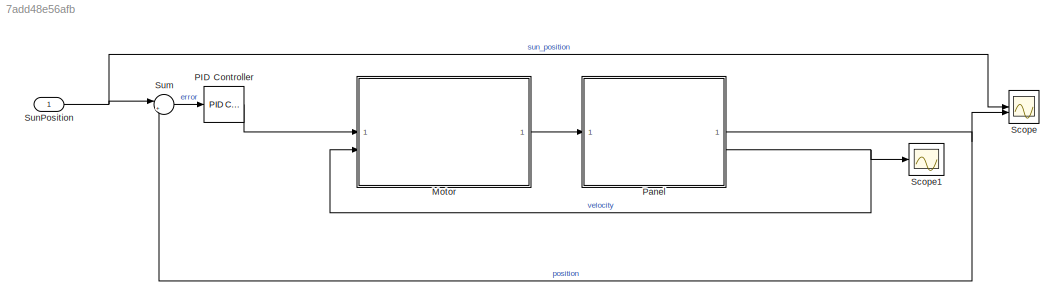
MODEL slx_7add48e56afb
KIND model
CONFIG AbsTol = auto
CONFIG EnableMultiTasking = off
CONFIG FixedStep = auto
CONFIG MaxStep = auto
CONFIG MinStep = auto
CONFIG RelTol = 1e-3
CONFIG SampleTimeConstraint = Unconstrained
CONFIG SolverName = VariableStepAuto
CONFIG StartTime = 0.0
CONFIG StopTime = 15*3600
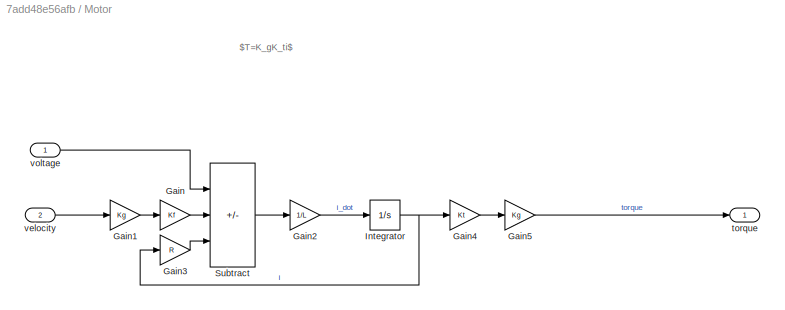
BLOCK [SubSystem] Motor
BLOCK [Gain] Motor/Gain
  Gain = Kf
BLOCK [Gain] Motor/Gain1
  Gain = Kg
BLOCK [Gain] Motor/Gain2
  Gain = 1/L
BLOCK [Gain] Motor/Gain3
  Gain = R
BLOCK [Gain] Motor/Gain4
  Gain = Kt
BLOCK [Gain] Motor/Gain5
  Gain = Kg
BLOCK [Integrator] Motor/Integrator
BLOCK [Sum] Motor/Subtract
  IconShape = rectangular
  Inputs = +--
BLOCK [Outport] Motor/torque
BLOCK [Inport] Motor/velocity
  Port = 2
BLOCK [Inport] Motor/voltage
BLOCK [Reference] PID Controller  REF=slpidlib/PID Controller
  LibrarySourceBlock = simulink/Continuous/PID Controller
  SourceBlock = slpidlib/PID Controller
  SourceType = PID 1dof
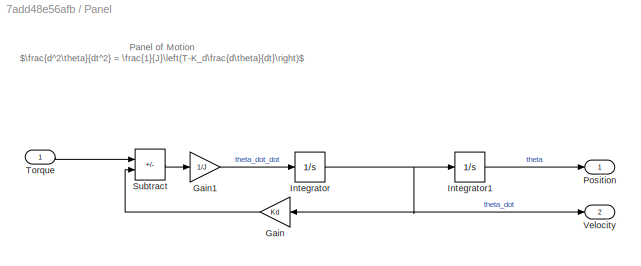
BLOCK [SubSystem] Panel
BLOCK [Gain] Panel/Gain
  Gain = Kd
BLOCK [Gain] Panel/Gain1
  Gain = 1/J
BLOCK [Integrator] Panel/Integrator
BLOCK [Integrator] Panel/Integrator1
BLOCK [Outport] Panel/Position
BLOCK [Sum] Panel/Subtract
  IconShape = rectangular
  Inputs = +-
BLOCK [Inport] Panel/Torque
BLOCK [Outport] Panel/Velocity
  Port = 2
BLOCK [Scope] Scope
  Floating = off
  NumInputPorts = 2
  ScopeSpecificationString = Simulink.scopes.TimeScopeBlockCfg('CurrentConfiguration', extmgr.ConfigurationSet(extmgr.Configuration('Core','General UI',true),extmgr.Configuration('Core','Source UI',true),extmgr.Configuration('Sources','WiredSimulink',true),extmgr.Configuration('Visuals','Time Domain',true,'SerializedDisplays',{struct('MinYLimReal','-0.65986','MaxYLimReal','5.93871','YLabelReal','','MinYLimMag','0.00000','MaxY...<+1596ch>
BLOCK [Scope] Scope1
  Floating = off
  NumInputPorts = 1
  ScopeSpecificationString = Simulink.scopes.TimeScopeBlockCfg('CurrentConfiguration', extmgr.ConfigurationSet(extmgr.Configuration('Core','General UI',true),extmgr.Configuration('Core','Source UI',true),extmgr.Configuration('Sources','WiredSimulink',true,'DataLoggingVariableName','ScopeData1'),extmgr.Configuration('Visuals','Time Domain',true,'SerializedDisplays',{struct('MinYLimReal','-0.32515','MaxYLimReal','1.94211','YLab...<+1396ch>
BLOCK [Sum] Sum
  Inputs = |+-
BLOCK [Inport] SunPosition
ANNOTATION Motor: $T=K_gK_ti$
ANNOTATION Panel: Panel of Motion $\frac{d^2\theta}{dt^2} = \frac{1}{J}\left(T-K_d\frac{d\theta}{dt}\right)$
LINE Motor/Gain1:1 -> Motor/Gain:1
LINE Motor/Gain2:1 -> Motor/Integrator:1
LINE Motor/Gain3:1 -> Motor/Subtract:3
LINE Motor/Gain4:1 -> Motor/Gain5:1
LINE Motor/Gain5:1 -> Motor/torque:1
LINE Motor/Gain:1 -> Motor/Subtract:2
NET Motor/Integrator:1 -> Motor/Gain3:1, Motor/Gain4:1
LINE Motor/Subtract:1 -> Motor/Gain2:1
LINE Motor/velocity:1 -> Motor/Gain1:1
LINE Motor/voltage:1 -> Motor/Subtract:1
LINE Motor:1 -> Panel:1
LINE PID Controller:1 -> Motor:1
LINE Panel/Gain1:1 -> Panel/Integrator:1
LINE Panel/Gain:1 -> Panel/Subtract:2
LINE Panel/Integrator1:1 -> Panel/Position:1
NET Panel/Integrator:1 -> Panel/Gain:1, Panel/Integrator1:1, Panel/Velocity:1
LINE Panel/Subtract:1 -> Panel/Gain1:1
LINE Panel/Torque:1 -> Panel/Subtract:1
NET Panel:1 -> Scope:2, Sum:2
NET Panel:2 -> Motor:2, Scope1:1
LINE Sum:1 -> PID Controller:1
NET SunPosition:1 -> Scope:1, Sum:1
note: NET lines group one-source signal fan-out (src -> all destinations, sorted); 1:1 wires keep LINE
